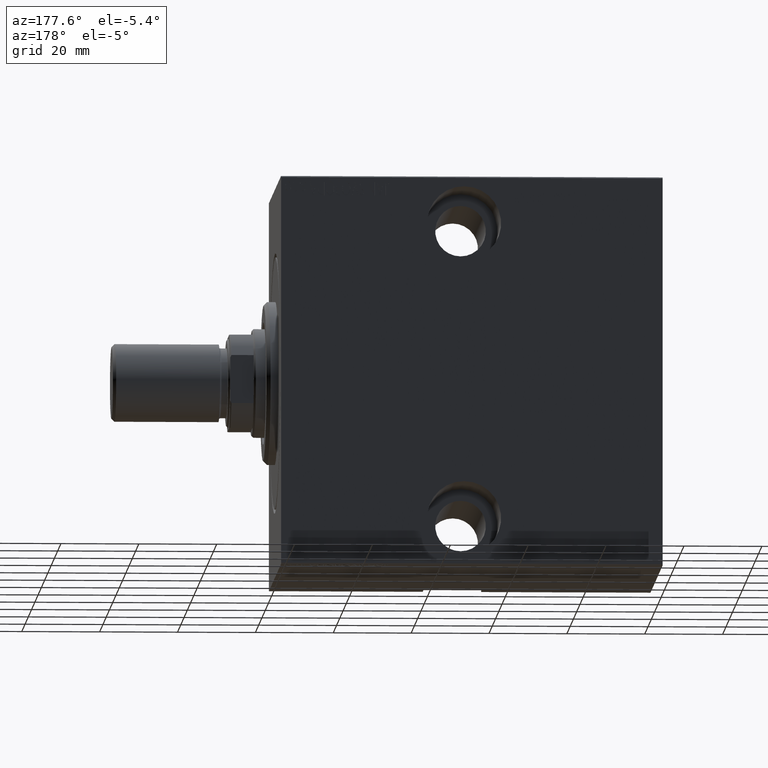
[diagram: clean part render]
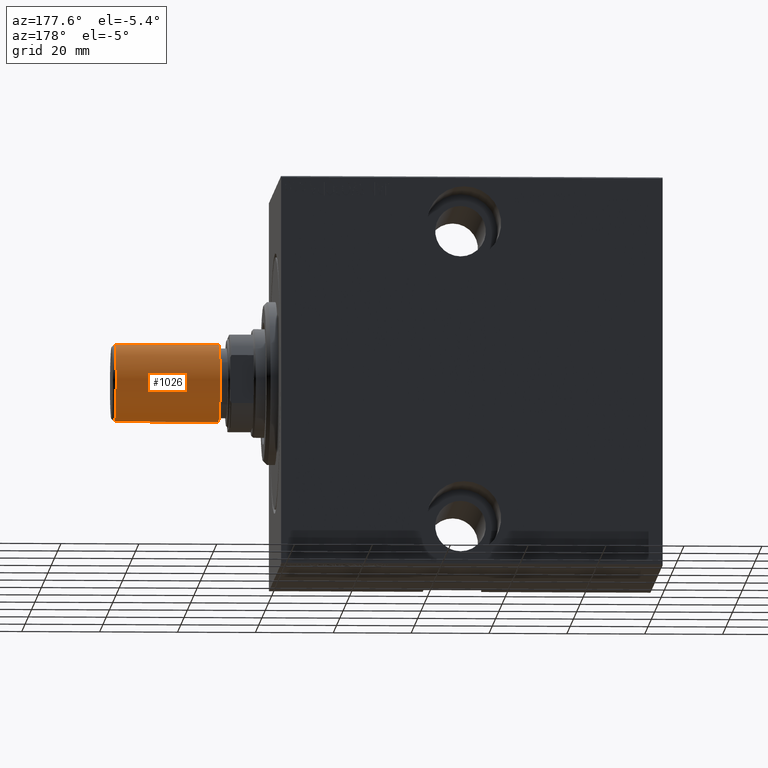
[diagram: same view with one face highlighted and labeled with its STEP entity id]
A machine part, auxiliary view. The second image highlights one B-rep face of the part: STEP entity #1026.
In plain terms, the highlighted cylindrical surface (partial cylindrical patch) has radius 10 mm, axis along (1, -0, -0).
Its self-contained STEP definition (entity closure, byte-faithful):
#455 = DIRECTION ( 'NONE',  ( 0.000000000000000000, 0.000000000000000000, 1.000000000000000000 ) ) ;
#982 = LINE ( 'NONE', #40706, #38765 ) ;
#1026 = ADVANCED_FACE ( 'NONE', ( #33144 ), #3270, .T. ) ;
#1486 = EDGE_LOOP ( 'NONE', ( #26750, #37818, #34980, #7072 ) ) ;
#1525 = VERTEX_POINT ( 'NONE', #2908 ) ;
#2908 = CARTESIAN_POINT ( 'NONE',  ( 10.00000000000000000, 1.224646799147353256E-15, 0.7999999999999986011 ) ) ;
#3054 = LINE ( 'NONE', #16464, #28514 ) ;
#3270 = CYLINDRICAL_SURFACE ( 'NONE', #16848, 10.00000000000000000 ) ;
#3474 = CARTESIAN_POINT ( 'NONE',  ( -10.00000000000000000, 0.000000000000000000, 27.50000000000000000 ) ) ;
#4434 = DIRECTION ( 'NONE',  ( -0.000000000000000000, -0.000000000000000000, 1.000000000000000000 ) ) ;
#7072 = ORIENTED_EDGE ( 'NONE', *, *, #37080, .F. ) ;
#7095 = CARTESIAN_POINT ( 'NONE',  ( 10.00000000000000000, 1.224646799147353256E-15, 27.50000000000000000 ) ) ;
#7290 = DIRECTION ( 'NONE',  ( 1.000000000000000000, 0.000000000000000000, 0.000000000000000000 ) ) ;
#7497 = DIRECTION ( 'NONE',  ( 1.000000000000000000, 0.000000000000000000, 0.000000000000000000 ) ) ;
#9543 = VERTEX_POINT ( 'NONE', #3474 ) ;
#9879 = DIRECTION ( 'NONE',  ( -1.000000000000000000, 0.000000000000000000, 0.000000000000000000 ) ) ;
#10667 = DIRECTION ( 'NONE',  ( -0.000000000000000000, -0.000000000000000000, -1.000000000000000000 ) ) ;
#11247 = CARTESIAN_POINT ( 'NONE',  ( 0.000000000000000000, 0.000000000000000000, 27.50000000000000000 ) ) ;
#12620 = EDGE_CURVE ( 'NONE', #1525, #36939, #23217, .T. ) ;
#16464 = CARTESIAN_POINT ( 'NONE',  ( -10.00000000000000000, 0.000000000000000000, 27.50000000000000000 ) ) ;
#16848 = AXIS2_PLACEMENT_3D ( 'NONE', #26141, #39924, #9879 ) ;
#18419 = EDGE_CURVE ( 'NONE', #33291, #9543, #19193, .T. ) ;
#19193 = CIRCLE ( 'NONE', #28987, 10.00000000000000000 ) ;
#20701 = EDGE_CURVE ( 'NONE', #33291, #1525, #982, .T. ) ;
#23217 = CIRCLE ( 'NONE', #28840, 10.00000000000000000 ) ;
#26141 = CARTESIAN_POINT ( 'NONE',  ( 0.000000000000000000, 0.000000000000000000, 27.50000000000000000 ) ) ;
#26750 = ORIENTED_EDGE ( 'NONE', *, *, #18419, .F. ) ;
#27716 = CARTESIAN_POINT ( 'NONE',  ( 0.000000000000000000, 0.000000000000000000, 0.7999999999999986011 ) ) ;
#28514 = VECTOR ( 'NONE', #41231, 1000.000000000000000 ) ;
#28773 = CARTESIAN_POINT ( 'NONE',  ( -10.00000000000000000, 0.000000000000000000, 0.7999999999999986011 ) ) ;
#28840 = AXIS2_PLACEMENT_3D ( 'NONE', #27716, #4434, #7290 ) ;
#28987 = AXIS2_PLACEMENT_3D ( 'NONE', #11247, #455, #7497 ) ;
#33144 = FACE_OUTER_BOUND ( 'NONE', #1486, .T. ) ;
#33291 = VERTEX_POINT ( 'NONE', #7095 ) ;
#34980 = ORIENTED_EDGE ( 'NONE', *, *, #12620, .T. ) ;
#36939 = VERTEX_POINT ( 'NONE', #28773 ) ;
#37080 = EDGE_CURVE ( 'NONE', #9543, #36939, #3054, .T. ) ;
#37818 = ORIENTED_EDGE ( 'NONE', *, *, #20701, .T. ) ;
#38765 = VECTOR ( 'NONE', #10667, 1000.000000000000000 ) ;
#39924 = DIRECTION ( 'NONE',  ( -0.000000000000000000, -0.000000000000000000, -1.000000000000000000 ) ) ;
#40706 = CARTESIAN_POINT ( 'NONE',  ( 10.00000000000000000, 1.224646799147353256E-15, 27.50000000000000000 ) ) ;
#41231 = DIRECTION ( 'NONE',  ( -0.000000000000000000, -0.000000000000000000, -1.000000000000000000 ) ) ;